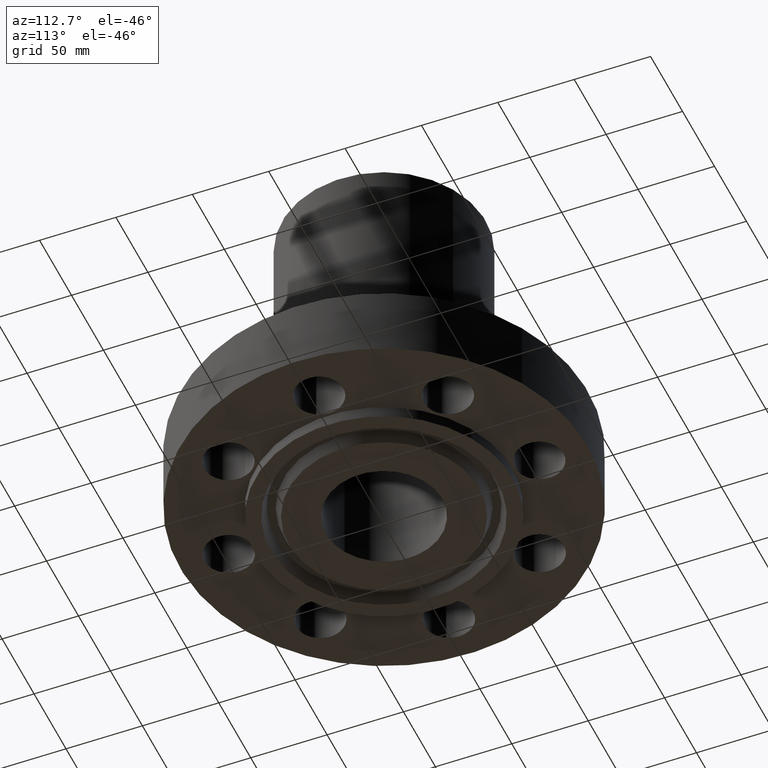
[diagram: clean part render]
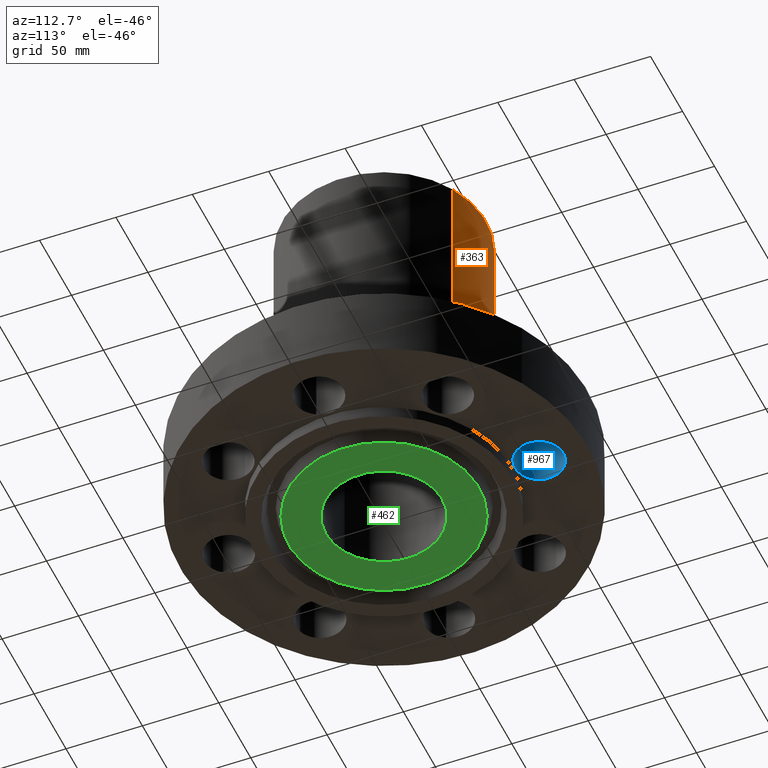
[diagram: same view with three faces highlighted in distinct colors, each labeled with its STEP entity id]
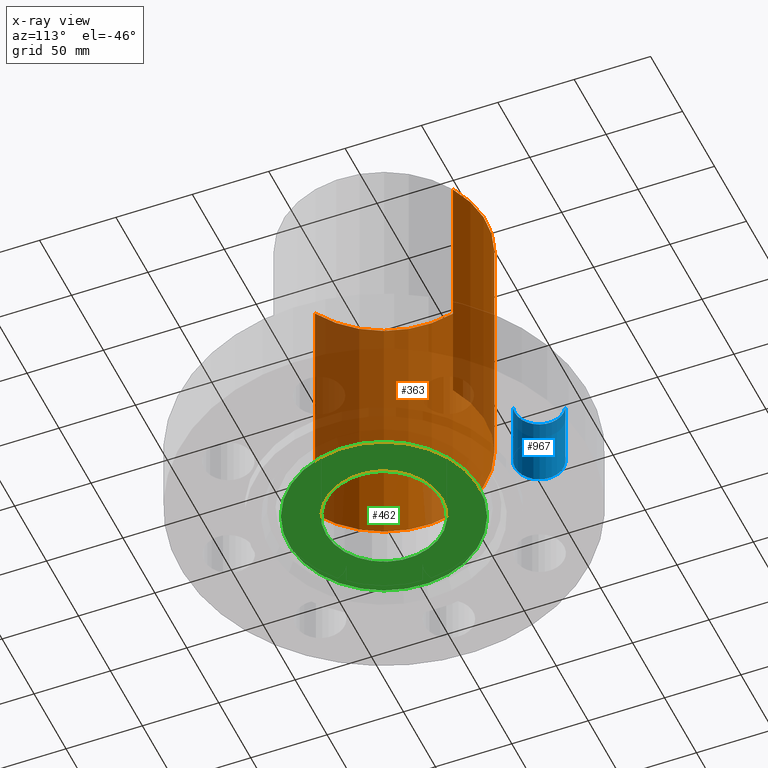
[diagram: x-ray of the same camera — body ghosted, the three highlighted faces saturated]
A machine part, auxiliary view with three faces highlighted in distinct colors.
The next image is the same camera in x-ray (body ghosted, the three faces saturated) — at least one of them is partly hidden behind the body in this view.
Their STEP definitions:

[orange] entity #363 — the highlighted cylindrical surface (partial cylindrical patch) has radius 66.675 mm, axis along (0, 0, -1).
#310=AXIS2_PLACEMENT_3D('Cylinder Axis2P3D',#307,#308,#309) ;
#349=AXIS2_PLACEMENT_3D('Circle Axis2P3D',#347,#348,$) ;
#354=AXIS2_PLACEMENT_3D('Circle Axis2P3D',#352,#353,$) ;
#307=CARTESIAN_POINT('Axis2P3D Location',(0.,0.,4.21850000002)) ;
#316=CARTESIAN_POINT('Vertex',(1.25849203884,2.30365422497,1.88000000001)) ;
#318=CARTESIAN_POINT('Vertex',(-1.25849203884,-2.30365422497,1.88000000001)) ;
#321=CARTESIAN_POINT('Line Origine',(1.25849203884,2.30365422497,5.31500000002)) ;
#325=CARTESIAN_POINT('Vertex',(1.25849203884,2.30365422497,8.75000000004)) ;
#332=CARTESIAN_POINT('Vertex',(-1.25849203884,-2.30365422497,8.75000000004)) ;
#335=CARTESIAN_POINT('Line Origine',(-1.25849203884,-2.30365422497,5.31500000002)) ;
#347=CARTESIAN_POINT('Axis2P3D Location',(0.,0.,1.88000000001)) ;
#352=CARTESIAN_POINT('Axis2P3D Location',(0.,0.,8.75000000004)) ;
#308=DIRECTION('Axis2P3D Direction',(0.,0.,-0.0393700787402)) ;
#309=DIRECTION('Axis2P3D XDirection',(-0.0188750212049,-0.0345504945626,0.)) ;
#322=DIRECTION('Vector Direction',(0.,0.,-0.0393700787402)) ;
#336=DIRECTION('Vector Direction',(0.,0.,-0.0393700787402)) ;
#348=DIRECTION('Axis2P3D Direction',(0.,0.,-0.0393700787402)) ;
#353=DIRECTION('Axis2P3D Direction',(0.,0.,-0.0393700787402)) ;
#323=VECTOR('Line Direction',#322,0.0393700787402) ;
#337=VECTOR('Line Direction',#336,0.0393700787402) ;
#358=ORIENTED_EDGE('',*,*,#351,.F.) ;
#359=ORIENTED_EDGE('',*,*,#339,.T.) ;
#360=ORIENTED_EDGE('',*,*,#356,.T.) ;
#361=ORIENTED_EDGE('',*,*,#327,.F.) ;
#363=ADVANCED_FACE('PartBody',(#362),#311,.T.) ;
#350=CIRCLE('generated circle',#349,2.62500000001) ;
#355=CIRCLE('generated circle',#354,2.62500000001) ;
#311=CYLINDRICAL_SURFACE('generated cylinder',#310,2.62500000001) ;
#327=EDGE_CURVE('',#317,#326,#324,.F.) ;
#339=EDGE_CURVE('',#319,#333,#338,.F.) ;
#351=EDGE_CURVE('',#319,#317,#350,.T.) ;
#356=EDGE_CURVE('',#333,#326,#355,.T.) ;
#357=EDGE_LOOP('',(#358,#359,#360,#361)) ;
#362=FACE_OUTER_BOUND('',#357,.T.) ;
#324=LINE('Line',#321,#323) ;
#338=LINE('Line',#335,#337) ;
#317=VERTEX_POINT('',#316) ;
#319=VERTEX_POINT('',#318) ;
#326=VERTEX_POINT('',#325) ;
#333=VERTEX_POINT('',#332) ;

[blue] entity #967 — the highlighted cylindrical surface (edge-blend (fillet) strip) has radius 15.875 mm, axis along (0, 0, 1).
#226=AXIS2_PLACEMENT_3D('Circle Axis2P3D',#224,#225,$) ;
#928=AXIS2_PLACEMENT_3D('Cylinder Axis2P3D',#925,#926,#927) ;
#958=AXIS2_PLACEMENT_3D('Circle Axis2P3D',#956,#957,$) ;
#219=CARTESIAN_POINT('Vertex',(-0.299640961629,4.5484891012,0.)) ;
#221=CARTESIAN_POINT('Vertex',(0.299640961629,3.45151089883,0.)) ;
#224=CARTESIAN_POINT('Axis2P3D Location',(2.79741234551E-016,4.00000000002,0.)) ;
#925=CARTESIAN_POINT('Axis2P3D Location',(-1.75305610389E-016,4.00000000002,0.00393700787402)) ;
#930=CARTESIAN_POINT('Line Origine',(0.299640961629,3.45151089883,0.940000000004)) ;
#934=CARTESIAN_POINT('Vertex',(0.299640961629,3.45151089883,1.88000000001)) ;
#941=CARTESIAN_POINT('Vertex',(-0.299640961629,4.5484891012,1.88000000001)) ;
#944=CARTESIAN_POINT('Line Origine',(-0.299640961629,4.5484891012,0.940000000004)) ;
#956=CARTESIAN_POINT('Axis2P3D Location',(-1.75305610389E-016,4.00000000002,1.88000000001)) ;
#225=DIRECTION('Axis2P3D Direction',(0.,0.,-0.0393700787402)) ;
#926=DIRECTION('Axis2P3D Direction',(0.,0.,0.0393700787402)) ;
#927=DIRECTION('Axis2P3D XDirection',(-0.0188750212049,0.0345504945626,0.)) ;
#931=DIRECTION('Vector Direction',(0.,0.,0.0393700787402)) ;
#945=DIRECTION('Vector Direction',(0.,0.,0.0393700787402)) ;
#957=DIRECTION('Axis2P3D Direction',(0.,0.,0.0393700787402)) ;
#932=VECTOR('Line Direction',#931,0.0393700787402) ;
#946=VECTOR('Line Direction',#945,0.0393700787402) ;
#962=ORIENTED_EDGE('',*,*,#948,.F.) ;
#963=ORIENTED_EDGE('',*,*,#960,.F.) ;
#964=ORIENTED_EDGE('',*,*,#936,.T.) ;
#965=ORIENTED_EDGE('',*,*,#228,.T.) ;
#967=ADVANCED_FACE('PartBody',(#966),#929,.F.) ;
#227=CIRCLE('generated circle',#226,0.625000000003) ;
#959=CIRCLE('generated circle',#958,0.625000000003) ;
#929=CYLINDRICAL_SURFACE('generated cylinder',#928,0.625000000003) ;
#228=EDGE_CURVE('',#222,#220,#227,.T.) ;
#936=EDGE_CURVE('',#935,#222,#933,.F.) ;
#948=EDGE_CURVE('',#942,#220,#947,.F.) ;
#960=EDGE_CURVE('',#935,#942,#959,.F.) ;
#961=EDGE_LOOP('',(#962,#963,#964,#965)) ;
#966=FACE_OUTER_BOUND('',#961,.T.) ;
#933=LINE('Line',#930,#932) ;
#947=LINE('Line',#944,#946) ;
#220=VERTEX_POINT('',#219) ;
#222=VERTEX_POINT('',#221) ;
#935=VERTEX_POINT('',#934) ;
#942=VERTEX_POINT('',#941) ;

[green] entity #462 — the highlighted planar face has unit normal (0, 0, -1).
#406=AXIS2_PLACEMENT_3D('Circle Axis2P3D',#404,#405,$) ;
#425=AXIS2_PLACEMENT_3D('Circle Axis2P3D',#423,#424,$) ;
#438=AXIS2_PLACEMENT_3D('Plane Axis2P3D',#435,#436,#437) ;
#442=AXIS2_PLACEMENT_3D('Circle Axis2P3D',#440,#441,$) ;
#451=AXIS2_PLACEMENT_3D('Circle Axis2P3D',#449,#450,$) ;
#401=CARTESIAN_POINT('Vertex',(0.719138307909,1.31637384284,-0.313000000001)) ;
#404=CARTESIAN_POINT('Axis2P3D Location',(0.,0.,-0.313000000001)) ;
#408=CARTESIAN_POINT('Vertex',(-0.719138307909,-1.31637384284,-0.313000000001)) ;
#423=CARTESIAN_POINT('Axis2P3D Location',(0.,0.,-0.313000000001)) ;
#435=CARTESIAN_POINT('Axis2P3D Location',(0.,1.50000000001,-0.313000000001)) ;
#440=CARTESIAN_POINT('Axis2P3D Location',(0.,0.,-0.313000000001)) ;
#444=CARTESIAN_POINT('Vertex',(-1.1760308462,-2.15271002433,-0.313000000001)) ;
#446=CARTESIAN_POINT('Vertex',(1.1760308462,2.15271002433,-0.313000000001)) ;
#449=CARTESIAN_POINT('Axis2P3D Location',(0.,0.,-0.313000000001)) ;
#405=DIRECTION('Axis2P3D Direction',(0.,0.,-0.0393700787402)) ;
#424=DIRECTION('Axis2P3D Direction',(0.,0.,-0.0393700787402)) ;
#436=DIRECTION('Axis2P3D Direction',(0.,0.,-0.0393700787402)) ;
#437=DIRECTION('Axis2P3D XDirection',(0.0393700787402,0.,0.)) ;
#441=DIRECTION('Axis2P3D Direction',(0.,0.,-0.0393700787402)) ;
#450=DIRECTION('Axis2P3D Direction',(0.,0.,-0.0393700787402)) ;
#455=ORIENTED_EDGE('',*,*,#448,.T.) ;
#456=ORIENTED_EDGE('',*,*,#453,.T.) ;
#459=ORIENTED_EDGE('',*,*,#410,.F.) ;
#460=ORIENTED_EDGE('',*,*,#427,.F.) ;
#461=FACE_BOUND('',#458,.T.) ;
#462=ADVANCED_FACE('PartBody',(#457,#461),#439,.T.) ;
#407=CIRCLE('generated circle',#406,1.50000000001) ;
#426=CIRCLE('generated circle',#425,1.50000000001) ;
#443=CIRCLE('generated circle',#442,2.45300000001) ;
#452=CIRCLE('generated circle',#451,2.45300000001) ;
#410=EDGE_CURVE('',#402,#409,#407,.T.) ;
#427=EDGE_CURVE('',#409,#402,#426,.T.) ;
#448=EDGE_CURVE('',#445,#447,#443,.T.) ;
#453=EDGE_CURVE('',#447,#445,#452,.T.) ;
#454=EDGE_LOOP('',(#455,#456)) ;
#458=EDGE_LOOP('',(#459,#460)) ;
#457=FACE_OUTER_BOUND('',#454,.T.) ;
#439=PLANE('',#438) ;
#402=VERTEX_POINT('',#401) ;
#409=VERTEX_POINT('',#408) ;
#445=VERTEX_POINT('',#444) ;
#447=VERTEX_POINT('',#446) ;